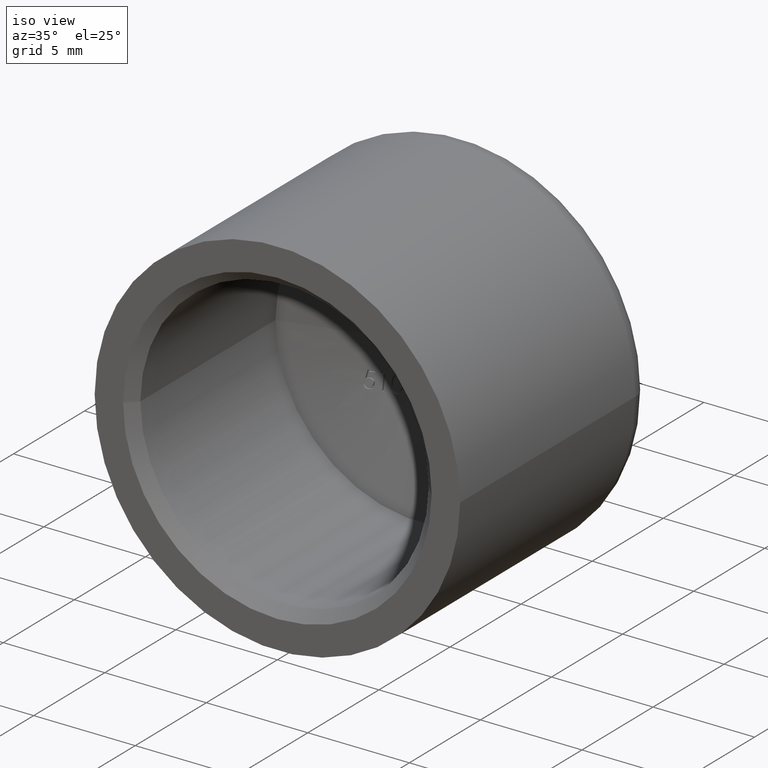
[diagram: clean part render]
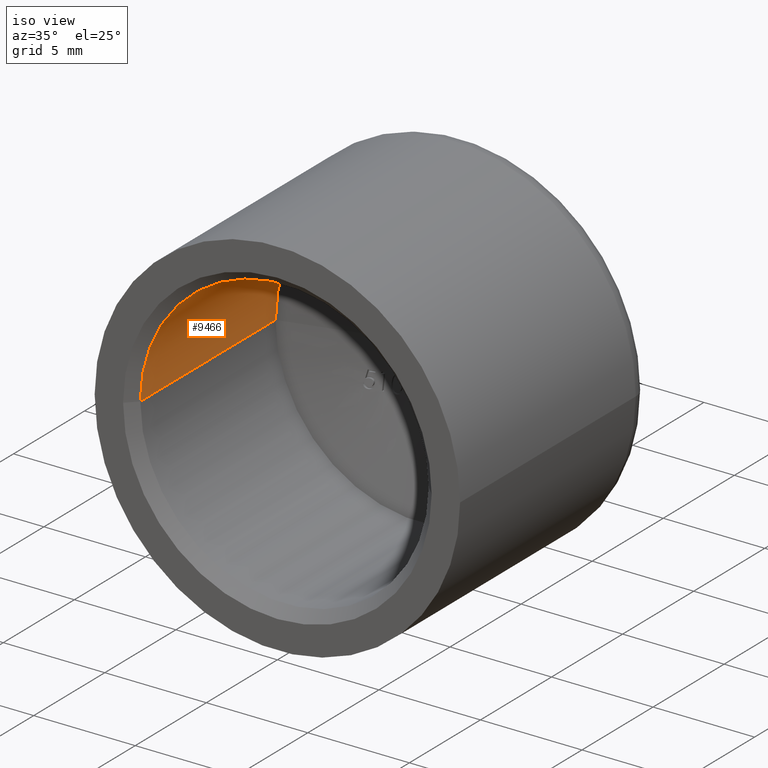
[diagram: same view with one face highlighted and labeled with its STEP entity id]
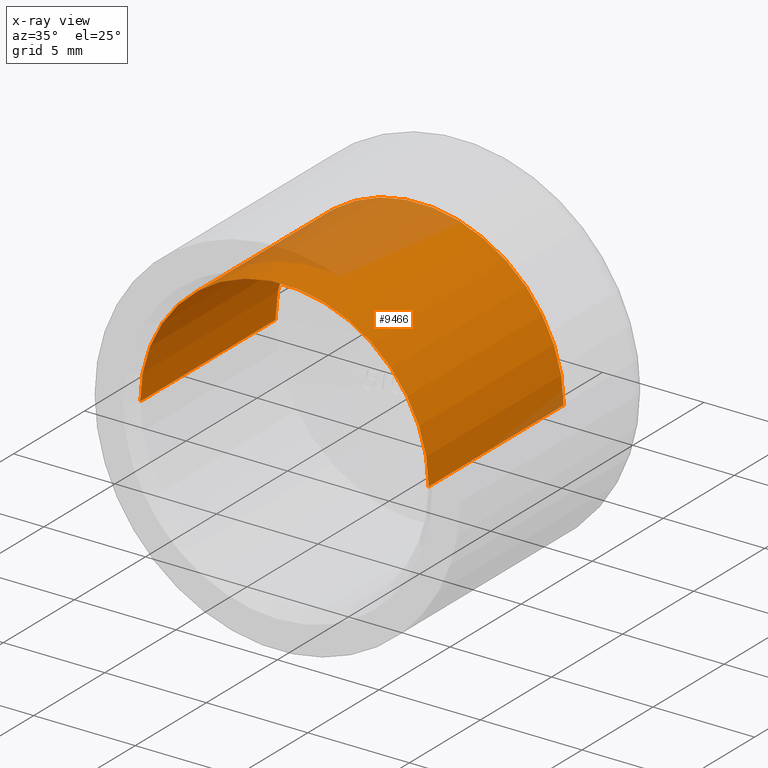
[diagram: x-ray of the same camera — body ghosted, the highlighted face saturated]
A machine part, iso view. The second image highlights one B-rep face of the part: STEP entity #9466.
The next image is the same camera in x-ray: the body ghosted, the highlighted face saturated — about 17% of this face is hidden behind the body in this view.
In plain terms, the highlighted cylindrical surface (partial cylindrical patch) has radius 7.1 mm, axis along (-0, -1, -0).
Its self-contained STEP definition (entity closure, byte-faithful):
#18 = AXIS2_PLACEMENT_3D ( 'NONE', #13907, #8244, #2811 ) ;
#241 = CARTESIAN_POINT ( 'NONE',  ( 7.099999999999998757, 11.90243926626093973, 0.000000000000000000 ) ) ;
#473 = VECTOR ( 'NONE', #8861, 1000.000000000000000 ) ;
#1002 = LINE ( 'NONE', #13671, #10059 ) ;
#1372 = ORIENTED_EDGE ( 'NONE', *, *, #3769, .F. ) ;
#1502 = AXIS2_PLACEMENT_3D ( 'NONE', #5659, #10985, #3503 ) ;
#2068 = CARTESIAN_POINT ( 'NONE',  ( 7.100000000000001421, 10.00000000000000000, 0.000000000000000000 ) ) ;
#2166 = LINE ( 'NONE', #241, #473 ) ;
#2247 = EDGE_LOOP ( 'NONE', ( #12792, #1372, #10147, #4112 ) ) ;
#2290 = CARTESIAN_POINT ( 'NONE',  ( -7.100000000000001421, 10.00000000000000000, 8.694992273946207746E-16 ) ) ;
#2670 = DIRECTION ( 'NONE',  ( -1.556407531961289385E-17, -1.000000000000000000, -0.000000000000000000 ) ) ;
#2811 = DIRECTION ( 'NONE',  ( 1.000000000000000000, 0.000000000000000000, 0.000000000000000000 ) ) ;
#3165 = VERTEX_POINT ( 'NONE', #4750 ) ;
#3503 = DIRECTION ( 'NONE',  ( 1.000000000000000000, -1.527045313359865600E-17, 0.000000000000000000 ) ) ;
#3701 = EDGE_CURVE ( 'NONE', #5809, #3165, #1002, .T. ) ;
#3769 = EDGE_CURVE ( 'NONE', #3873, #5809, #4041, .T. ) ;
#3771 = CARTESIAN_POINT ( 'NONE',  ( -4.821066856699010765E-17, 11.90243926626093973, 0.000000000000000000 ) ) ;
#3817 = DIRECTION ( 'NONE',  ( 1.000000000000000000, 0.000000000000000000, 0.000000000000000000 ) ) ;
#3870 = AXIS2_PLACEMENT_3D ( 'NONE', #3771, #5921, #3817 ) ;
#3873 = VERTEX_POINT ( 'NONE', #2068 ) ;
#4041 = CIRCLE ( 'NONE', #18, 7.099999999999998757 ) ;
#4112 = ORIENTED_EDGE ( 'NONE', *, *, #7625, .T. ) ;
#4750 = CARTESIAN_POINT ( 'NONE',  ( -7.099999999999998757, 0.4999999999999936162, 8.694992273946205774E-16 ) ) ;
#5250 = CARTESIAN_POINT ( 'NONE',  ( 7.099999999999998757, 0.4999999999999933942, 0.000000000000000000 ) ) ;
#5659 = CARTESIAN_POINT ( 'NONE',  ( -2.256790921343870471E-16, 0.4999999999999935052, 0.000000000000000000 ) ) ;
#5809 = VERTEX_POINT ( 'NONE', #2290 ) ;
#5921 = DIRECTION ( 'NONE',  ( -1.556407531961289385E-17, -1.000000000000000000, -0.000000000000000000 ) ) ;
#6202 = CYLINDRICAL_SURFACE ( 'NONE', #3870, 7.099999999999998757 ) ;
#7625 = EDGE_CURVE ( 'NONE', #10501, #3165, #12153, .T. ) ;
#8244 = DIRECTION ( 'NONE',  ( -1.556407531961289385E-17, -1.000000000000000000, -0.000000000000000000 ) ) ;
#8861 = DIRECTION ( 'NONE',  ( -1.556407531961289385E-17, -1.000000000000000000, -0.000000000000000000 ) ) ;
#9466 = ADVANCED_FACE ( 'NONE', ( #13508 ), #6202, .F. ) ;
#10059 = VECTOR ( 'NONE', #2670, 1000.000000000000000 ) ;
#10147 = ORIENTED_EDGE ( 'NONE', *, *, #12657, .T. ) ;
#10501 = VERTEX_POINT ( 'NONE', #5250 ) ;
#10985 = DIRECTION ( 'NONE',  ( -1.556407531961290926E-17, -1.000000000000000000, 0.000000000000000000 ) ) ;
#12153 = CIRCLE ( 'NONE', #1502, 7.099999999999998757 ) ;
#12657 = EDGE_CURVE ( 'NONE', #3873, #10501, #2166, .T. ) ;
#12792 = ORIENTED_EDGE ( 'NONE', *, *, #3701, .F. ) ;
#13508 = FACE_OUTER_BOUND ( 'NONE', #2247, .T. ) ;
#13671 = CARTESIAN_POINT ( 'NONE',  ( -7.099999999999998757, 11.90243926626093973, 8.694992273946205774E-16 ) ) ;
#13907 = CARTESIAN_POINT ( 'NONE',  ( -7.782037659806444459E-17, 10.00000000000000000, 0.000000000000000000 ) ) ;